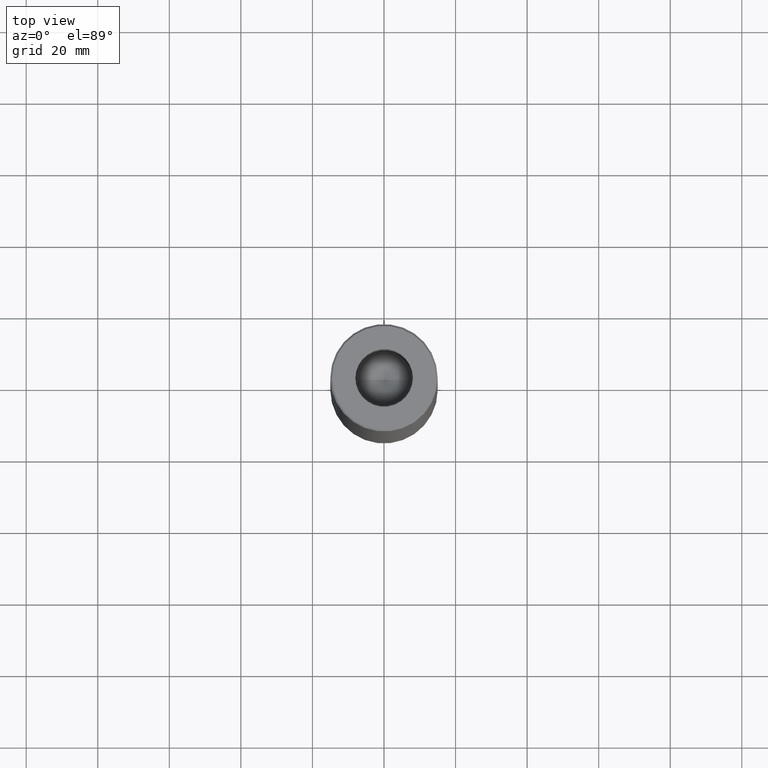
[diagram: clean part render]
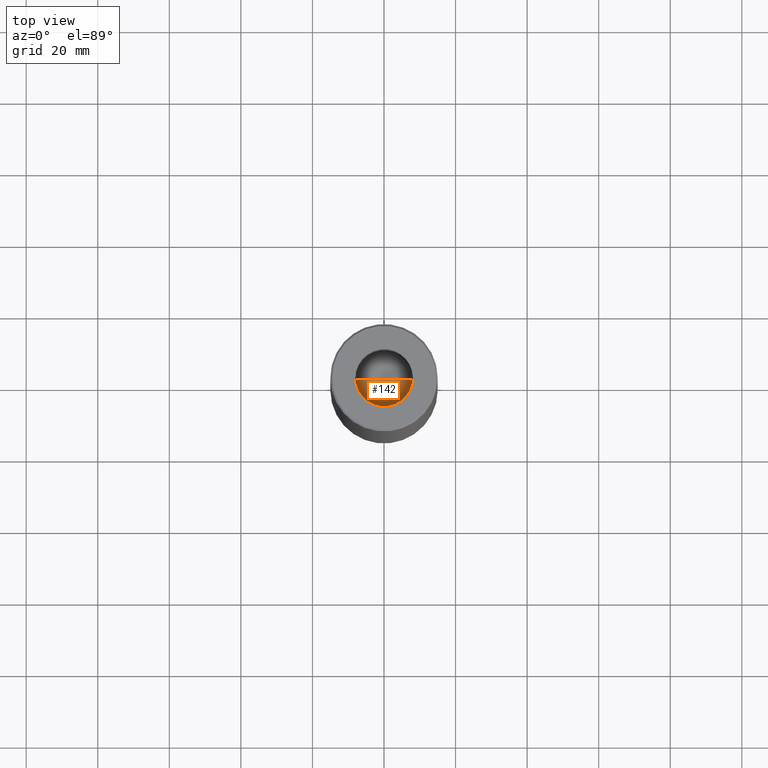
[diagram: same view with one face highlighted and labeled with its STEP entity id]
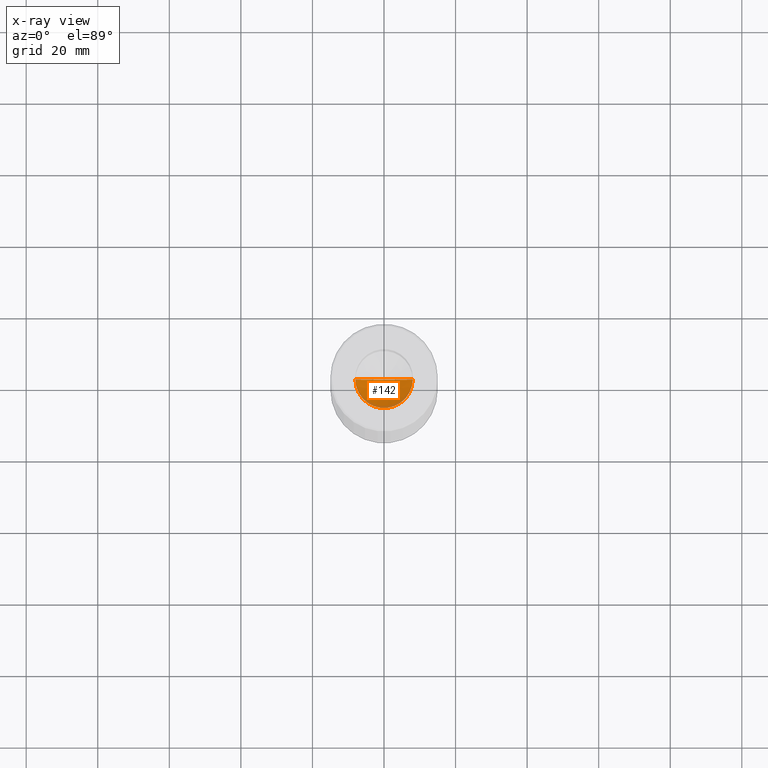
[diagram: x-ray of the same camera — body ghosted, the highlighted face saturated]
A machine part, top view. The second image highlights one B-rep face of the part: STEP entity #142.
The next image is the same camera in x-ray: the body ghosted, the highlighted face saturated — about 8% of this face is hidden behind the body in this view.
In plain terms, the highlighted conical surface has half-angle 59 deg.
Its self-contained STEP definition (entity closure, byte-faithful):
#10 = AXIS2_PLACEMENT_3D ( 'NONE', #308, #341, #344 ) ;
#18 = CONICAL_SURFACE ( 'NONE', #10, 7.999999999999994671, 1.029744258676653423 ) ;
#33 = CARTESIAN_POINT ( 'NONE',  ( -7.999999999999994671, 9.797174393178819741E-16, -30.00000000000000000 ) ) ;
#41 = VERTEX_POINT ( 'NONE', #486 ) ;
#47 = DIRECTION ( 'NONE',  ( 1.000000000000000000, 0.000000000000000000, 0.000000000000000000 ) ) ;
#57 = EDGE_CURVE ( 'NONE', #41, #359, #333, .T. ) ;
#90 = EDGE_LOOP ( 'NONE', ( #235, #598, #509 ) ) ;
#139 = AXIS2_PLACEMENT_3D ( 'NONE', #337, #539, #47 ) ;
#142 = ADVANCED_FACE ( 'NONE', ( #297 ), #18, .F. ) ;
#235 = ORIENTED_EDGE ( 'NONE', *, *, #464, .F. ) ;
#280 = EDGE_CURVE ( 'NONE', #389, #41, #471, .T. ) ;
#297 = FACE_OUTER_BOUND ( 'NONE', #90, .T. ) ;
#301 = VECTOR ( 'NONE', #324, 1000.000000000000000 ) ;
#308 = CARTESIAN_POINT ( 'NONE',  ( 0.000000000000000000, 0.000000000000000000, -30.00000000000000000 ) ) ;
#324 = DIRECTION ( 'NONE',  ( -0.8571673007021117785, 1.049727191138617956E-16, 0.5150380749100550437 ) ) ;
#325 = VECTOR ( 'NONE', #540, 1000.000000000000000 ) ;
#333 = CIRCLE ( 'NONE', #139, 7.999999999999994671 ) ;
#337 = CARTESIAN_POINT ( 'NONE',  ( 0.000000000000000000, 0.000000000000000000, -30.00000000000000000 ) ) ;
#341 = DIRECTION ( 'NONE',  ( -0.000000000000000000, -0.000000000000000000, 1.000000000000000000 ) ) ;
#344 = DIRECTION ( 'NONE',  ( 1.000000000000000000, 0.000000000000000000, 0.000000000000000000 ) ) ;
#359 = VERTEX_POINT ( 'NONE', #579 ) ;
#389 = VERTEX_POINT ( 'NONE', #568 ) ;
#395 = LINE ( 'NONE', #635, #325 ) ;
#464 = EDGE_CURVE ( 'NONE', #389, #359, #395, .T. ) ;
#471 = LINE ( 'NONE', #33, #301 ) ;
#486 = CARTESIAN_POINT ( 'NONE',  ( -7.999999999999994671, 9.797174393178819741E-16, -30.00000000000000000 ) ) ;
#509 = ORIENTED_EDGE ( 'NONE', *, *, #57, .T. ) ;
#539 = DIRECTION ( 'NONE',  ( -0.000000000000000000, -0.000000000000000000, 1.000000000000000000 ) ) ;
#540 = DIRECTION ( 'NONE',  ( 0.8571673007021117785, 0.000000000000000000, 0.5150380749100550437 ) ) ;
#568 = CARTESIAN_POINT ( 'NONE',  ( -8.296478875781655917E-15, 0.000000000000000000, -34.80688495222048573 ) ) ;
#579 = CARTESIAN_POINT ( 'NONE',  ( 7.999999999999994671, 0.000000000000000000, -30.00000000000000000 ) ) ;
#598 = ORIENTED_EDGE ( 'NONE', *, *, #280, .T. ) ;
#635 = CARTESIAN_POINT ( 'NONE',  ( 7.999999999999994671, 0.000000000000000000, -30.00000000000000000 ) ) ;